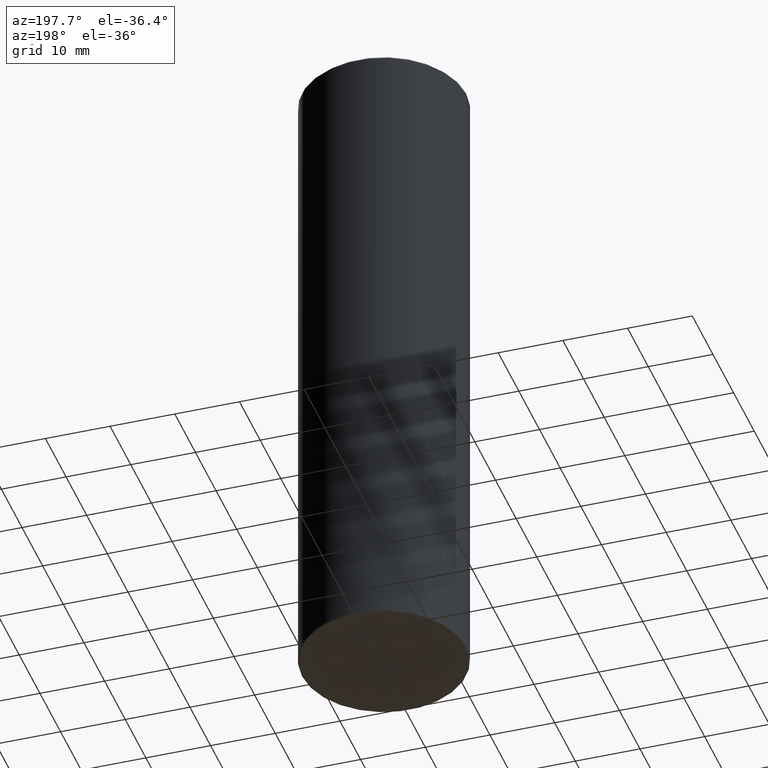
[diagram: clean part render]
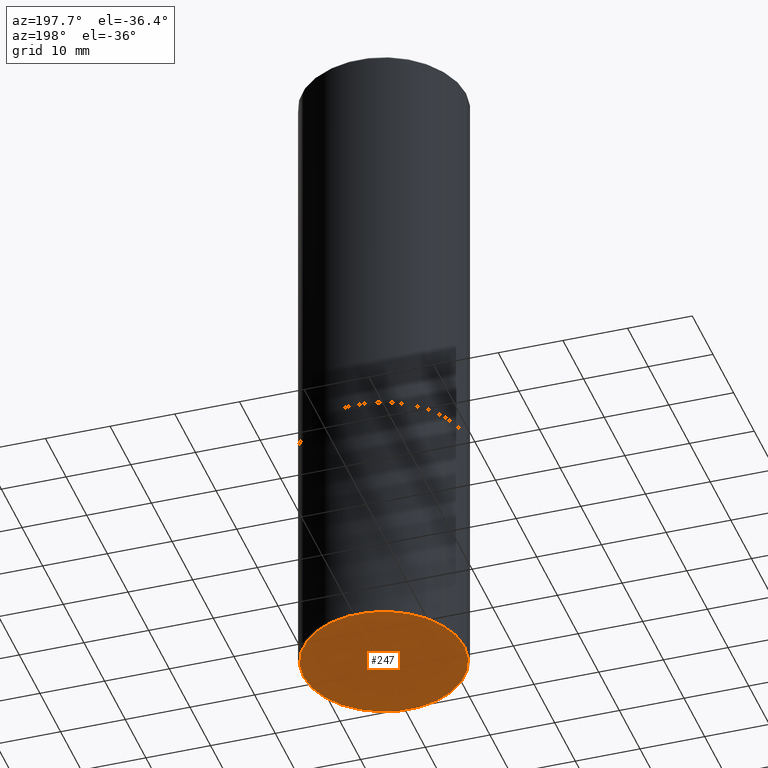
[diagram: same view with one face highlighted and labeled with its STEP entity id]
A machine part, auxiliary view. The second image highlights one B-rep face of the part: STEP entity #247.
In plain terms, the highlighted planar face has unit normal (0, -0, -1).
Its self-contained STEP definition (entity closure, byte-faithful):
#17 = VERTEX_POINT ( 'NONE', #258 ) ;
#45 = AXIS2_PLACEMENT_3D ( 'NONE', #46, #182, #281 ) ;
#46 = CARTESIAN_POINT ( 'NONE',  ( 9.781875224740546387E-29, -1.396592535537258233E-14, -4.000000000000000000 ) ) ;
#55 = EDGE_CURVE ( 'NONE', #17, #187, #198, .T. ) ;
#65 = EDGE_LOOP ( 'NONE', ( #312, #90 ) ) ;
#90 = ORIENTED_EDGE ( 'NONE', *, *, #368, .F. ) ;
#115 = CARTESIAN_POINT ( 'NONE',  ( 9.781875224740546387E-29, -1.396592535537258233E-14, -4.000000000000000000 ) ) ;
#167 = CARTESIAN_POINT ( 'NONE',  ( -0.4899999999999999911, -1.043128140666586904E-14, -4.000000000000000000 ) ) ;
#182 = DIRECTION ( 'NONE',  ( 2.438088387897960049E-29, -3.491481338843145188E-15, -1.000000000000000000 ) ) ;
#187 = VERTEX_POINT ( 'NONE', #167 ) ;
#195 = CARTESIAN_POINT ( 'NONE',  ( 9.781875224740546387E-29, -1.396592535537258233E-14, -4.000000000000000000 ) ) ;
#198 = CIRCLE ( 'NONE', #305, 0.4899999999999999911 ) ;
#226 = DIRECTION ( 'NONE',  ( 1.000000000000000000, -6.982962677686265922E-15, 0.000000000000000000 ) ) ;
#247 = ADVANCED_FACE ( 'NONE', ( #371 ), #286, .T. ) ;
#258 = CARTESIAN_POINT ( 'NONE',  ( 0.4899999999999999911, -1.738757706743885081E-14, -4.000000000000000000 ) ) ;
#264 = DIRECTION ( 'NONE',  ( -2.445468806185136597E-29, 3.491481338843145583E-15, 1.000000000000000000 ) ) ;
#281 = DIRECTION ( 'NONE',  ( -1.000000000000000000, 6.982962677686265922E-15, -4.876176775795935793E-29 ) ) ;
#286 = PLANE ( 'NONE',  #45 ) ;
#305 = AXIS2_PLACEMENT_3D ( 'NONE', #115, #385, #350 ) ;
#312 = ORIENTED_EDGE ( 'NONE', *, *, #55, .F. ) ;
#320 = CIRCLE ( 'NONE', #372, 0.4899999999999999911 ) ;
#350 = DIRECTION ( 'NONE',  ( 1.000000000000000000, -6.982962677686265922E-15, 0.000000000000000000 ) ) ;
#368 = EDGE_CURVE ( 'NONE', #187, #17, #320, .T. ) ;
#371 = FACE_OUTER_BOUND ( 'NONE', #65, .T. ) ;
#372 = AXIS2_PLACEMENT_3D ( 'NONE', #195, #264, #226 ) ;
#385 = DIRECTION ( 'NONE',  ( -2.445468806185136597E-29, 3.491481338843145583E-15, 1.000000000000000000 ) ) ;